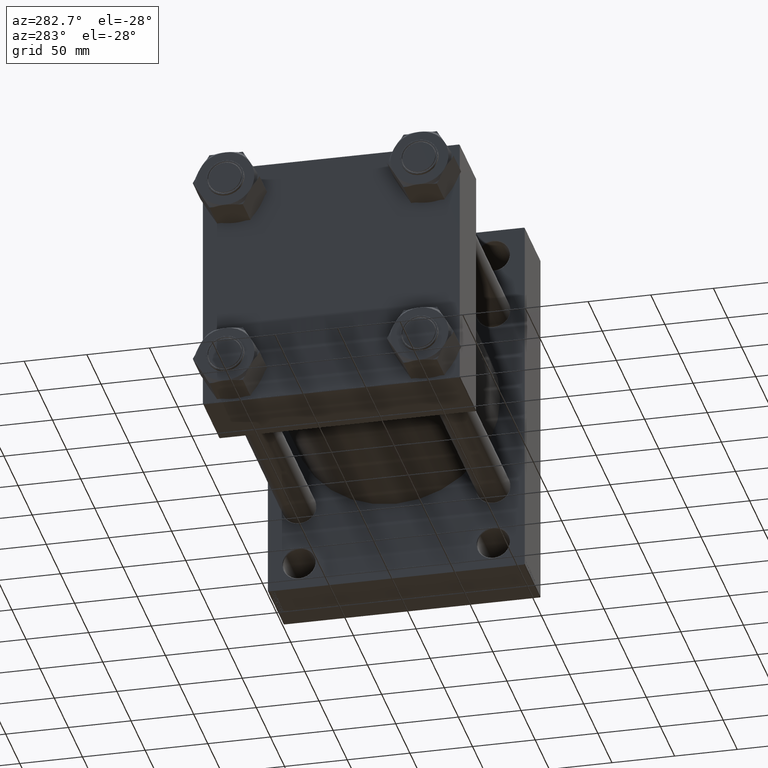
[diagram: clean part render]
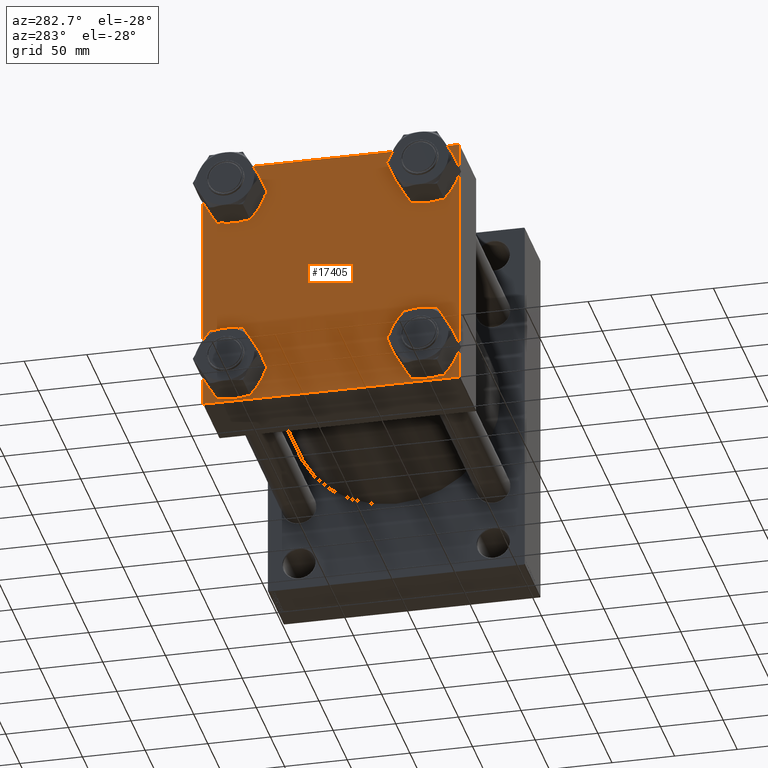
[diagram: same view with one face highlighted and labeled with its STEP entity id]
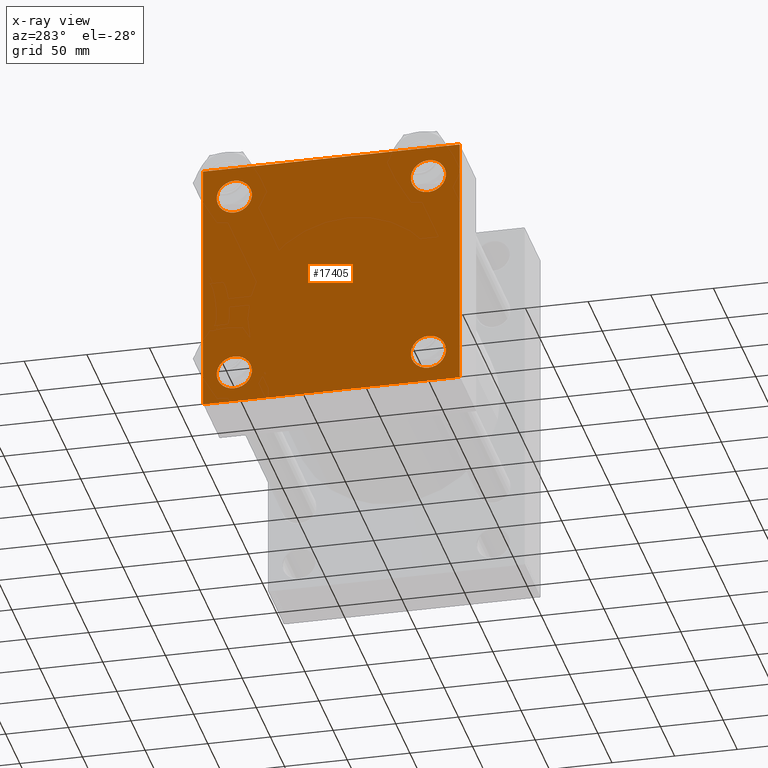
[diagram: x-ray of the same camera — body ghosted, the highlighted face saturated]
A machine part, auxiliary view. The second image highlights one B-rep face of the part: STEP entity #17405.
The next image is the same camera in x-ray: the body ghosted, the highlighted face saturated — about 0% of this face is hidden behind the body in this view.
In plain terms, the highlighted planar face has unit normal (-1, 0, 0).
Its self-contained STEP definition (entity closure, byte-faithful):
#263 = DIRECTION ( 'NONE',  ( 0.000000000000000000, 0.000000000000000000, 1.000000000000000000 ) ) ;
#495 = DIRECTION ( 'NONE',  ( 1.000000000000000000, -0.000000000000000000, -0.000000000000000000 ) ) ;
#644 = LINE ( 'NONE', #44977, #19964 ) ;
#779 = DIRECTION ( 'NONE',  ( 0.000000000000000000, 0.7071067811865474617, -0.7071067811865474617 ) ) ;
#948 = FACE_BOUND ( 'NONE', #6218, .T. ) ;
#1090 = CARTESIAN_POINT ( 'NONE',  ( 0.000000000000000000, 77.44999999999998863, 91.45000000000014495 ) ) ;
#1969 = EDGE_CURVE ( 'NONE', #36597, #6705, #27398, .T. ) ;
#2100 = ORIENTED_EDGE ( 'NONE', *, *, #9633, .F. ) ;
#2260 = CARTESIAN_POINT ( 'NONE',  ( 0.000000000000000000, 102.5000000000000284, 102.5000000000000284 ) ) ;
#2739 = CARTESIAN_POINT ( 'NONE',  ( 0.000000000000000000, -102.4999999999999716, 102.5000000000000000 ) ) ;
#3314 = DIRECTION ( 'NONE',  ( 0.000000000000000000, -1.000000000000000000, -1.353930517835556727E-16 ) ) ;
#3366 = LINE ( 'NONE', #7024, #43877 ) ;
#3601 = CARTESIAN_POINT ( 'NONE',  ( 0.000000000000000000, 77.44999999999998863, 77.45000000000001705 ) ) ;
#3658 = ORIENTED_EDGE ( 'NONE', *, *, #35956, .T. ) ;
#3759 = VERTEX_POINT ( 'NONE', #20785 ) ;
#4411 = EDGE_CURVE ( 'NONE', #43831, #18232, #3366, .T. ) ;
#4508 = CIRCLE ( 'NONE', #37160, 14.00000000000012434 ) ;
#4871 = CARTESIAN_POINT ( 'NONE',  ( 0.000000000000000000, -102.2499999999999716, -102.2499999999999716 ) ) ;
#4901 = CARTESIAN_POINT ( 'NONE',  ( 0.000000000000000000, 102.2500000000000142, 102.2500000000000142 ) ) ;
#5159 = CARTESIAN_POINT ( 'NONE',  ( 0.000000000000000000, -102.4999999999999716, 102.0000000000000000 ) ) ;
#5242 = CIRCLE ( 'NONE', #28554, 14.00000000000012434 ) ;
#5819 = ORIENTED_EDGE ( 'NONE', *, *, #30098, .F. ) ;
#6218 = EDGE_LOOP ( 'NONE', ( #24434, #37667 ) ) ;
#6705 = VERTEX_POINT ( 'NONE', #16408 ) ;
#6754 = DIRECTION ( 'NONE',  ( 1.000000000000000000, -0.000000000000000000, -0.000000000000000000 ) ) ;
#6861 = CIRCLE ( 'NONE', #34048, 14.00000000000012434 ) ;
#7024 = CARTESIAN_POINT ( 'NONE',  ( 0.000000000000000000, -102.2499999999999716, 102.2499999999999716 ) ) ;
#7027 = CARTESIAN_POINT ( 'NONE',  ( 0.000000000000000000, -77.44999999999996021, 91.45000000000015916 ) ) ;
#7319 = DIRECTION ( 'NONE',  ( 0.000000000000000000, 0.000000000000000000, 1.000000000000000000 ) ) ;
#7560 = DIRECTION ( 'NONE',  ( 1.000000000000000000, -0.000000000000000000, -0.000000000000000000 ) ) ;
#7974 = EDGE_CURVE ( 'NONE', #39006, #21910, #15927, .T. ) ;
#8194 = VERTEX_POINT ( 'NONE', #20069 ) ;
#8264 = DIRECTION ( 'NONE',  ( -1.000000000000000000, 0.000000000000000000, 0.000000000000000000 ) ) ;
#8375 = VERTEX_POINT ( 'NONE', #16907 ) ;
#8500 = FACE_OUTER_BOUND ( 'NONE', #29611, .T. ) ;
#8908 = EDGE_CURVE ( 'NONE', #8194, #39456, #27011, .T. ) ;
#9199 = DIRECTION ( 'NONE',  ( 1.000000000000000000, -0.000000000000000000, -0.000000000000000000 ) ) ;
#9227 = CARTESIAN_POINT ( 'NONE',  ( 0.000000000000000000, 0.000000000000000000, 0.000000000000000000 ) ) ;
#9446 = EDGE_CURVE ( 'NONE', #6705, #36597, #37784, .T. ) ;
#9633 = EDGE_CURVE ( 'NONE', #43831, #39456, #10058, .T. ) ;
#9730 = DIRECTION ( 'NONE',  ( 0.000000000000000000, 0.000000000000000000, 1.000000000000000000 ) ) ;
#10058 = LINE ( 'NONE', #2739, #12928 ) ;
#10406 = CARTESIAN_POINT ( 'NONE',  ( 0.000000000000000000, 77.44999999999998863, -77.45000000000001705 ) ) ;
#10632 = CARTESIAN_POINT ( 'NONE',  ( 0.000000000000000000, -77.44999999999996021, 77.45000000000003126 ) ) ;
#10890 = DIRECTION ( 'NONE',  ( 0.000000000000000000, 0.000000000000000000, 1.000000000000000000 ) ) ;
#10977 = CARTESIAN_POINT ( 'NONE',  ( 0.000000000000000000, -101.9999999999999147, 102.5000000000000000 ) ) ;
#11343 = LINE ( 'NONE', #40082, #39563 ) ;
#12928 = VECTOR ( 'NONE', #47305, 1000.000000000000000 ) ;
#13126 = DIRECTION ( 'NONE',  ( 0.000000000000000000, 0.000000000000000000, 1.000000000000000000 ) ) ;
#13547 = DIRECTION ( 'NONE',  ( 0.000000000000000000, 0.000000000000000000, 1.000000000000000000 ) ) ;
#14247 = CARTESIAN_POINT ( 'NONE',  ( 0.000000000000000000, 77.44999999999998863, 63.44999999999989626 ) ) ;
#15035 = DIRECTION ( 'NONE',  ( -0.000000000000000000, 0.7071067811865474617, 0.7071067811865474617 ) ) ;
#15421 = CARTESIAN_POINT ( 'NONE',  ( 0.000000000000000000, -77.44999999999996021, -77.45000000000003126 ) ) ;
#15490 = EDGE_CURVE ( 'NONE', #42808, #18903, #644, .T. ) ;
#15927 = CIRCLE ( 'NONE', #23716, 14.00000000000012434 ) ;
#16408 = CARTESIAN_POINT ( 'NONE',  ( 0.000000000000000000, 77.44999999999998863, -63.44999999999989626 ) ) ;
#16531 = DIRECTION ( 'NONE',  ( 1.000000000000000000, -0.000000000000000000, -0.000000000000000000 ) ) ;
#16907 = CARTESIAN_POINT ( 'NONE',  ( 0.000000000000000000, 102.5000000000000284, 102.0000000000000142 ) ) ;
#17405 = ADVANCED_FACE ( 'NONE', ( #27216, #24062, #948, #46488, #8500 ), #31360, .T. ) ;
#17632 = EDGE_CURVE ( 'NONE', #33178, #37899, #4508, .T. ) ;
#18232 = VERTEX_POINT ( 'NONE', #10977 ) ;
#18523 = EDGE_CURVE ( 'NONE', #18903, #8194, #11343, .T. ) ;
#18903 = VERTEX_POINT ( 'NONE', #45119 ) ;
#19260 = AXIS2_PLACEMENT_3D ( 'NONE', #9227, #8264, #13126 ) ;
#19342 = DIRECTION ( 'NONE',  ( 0.000000000000000000, 0.000000000000000000, -1.000000000000000000 ) ) ;
#19802 = DIRECTION ( 'NONE',  ( 0.000000000000000000, 0.000000000000000000, 1.000000000000000000 ) ) ;
#19964 = VECTOR ( 'NONE', #40833, 1000.000000000000114 ) ;
#20069 = CARTESIAN_POINT ( 'NONE',  ( 0.000000000000000000, -101.9999999999999432, -102.5000000000000000 ) ) ;
#20785 = CARTESIAN_POINT ( 'NONE',  ( 0.000000000000000000, -77.44999999999996021, -91.45000000000015916 ) ) ;
#20886 = AXIS2_PLACEMENT_3D ( 'NONE', #47747, #495, #263 ) ;
#21055 = CARTESIAN_POINT ( 'NONE',  ( 0.000000000000000000, -77.44999999999996021, 63.44999999999991047 ) ) ;
#21353 = ORIENTED_EDGE ( 'NONE', *, *, #46589, .T. ) ;
#21910 = VERTEX_POINT ( 'NONE', #21055 ) ;
#22570 = ORIENTED_EDGE ( 'NONE', *, *, #34371, .T. ) ;
#23216 = VERTEX_POINT ( 'NONE', #36826 ) ;
#23474 = CARTESIAN_POINT ( 'NONE',  ( 0.000000000000000000, 102.5000000000000284, 102.5000000000000284 ) ) ;
#23716 = AXIS2_PLACEMENT_3D ( 'NONE', #10632, #16531, #9730 ) ;
#23789 = VECTOR ( 'NONE', #24644, 1000.000000000000000 ) ;
#23947 = CARTESIAN_POINT ( 'NONE',  ( 0.000000000000000000, 102.5000000000000284, -101.9999999999999147 ) ) ;
#24062 = FACE_BOUND ( 'NONE', #42221, .T. ) ;
#24434 = ORIENTED_EDGE ( 'NONE', *, *, #9446, .T. ) ;
#24644 = DIRECTION ( 'NONE',  ( 0.000000000000000000, -1.000000000000000000, -1.353930517835556973E-16 ) ) ;
#25659 = DIRECTION ( 'NONE',  ( 1.000000000000000000, -0.000000000000000000, -0.000000000000000000 ) ) ;
#25961 = ORIENTED_EDGE ( 'NONE', *, *, #39373, .T. ) ;
#26128 = ORIENTED_EDGE ( 'NONE', *, *, #38743, .T. ) ;
#26554 = AXIS2_PLACEMENT_3D ( 'NONE', #36785, #7560, #7319 ) ;
#27011 = LINE ( 'NONE', #4871, #38546 ) ;
#27077 = ORIENTED_EDGE ( 'NONE', *, *, #18523, .T. ) ;
#27216 = FACE_BOUND ( 'NONE', #29206, .T. ) ;
#27398 = CIRCLE ( 'NONE', #38305, 14.00000000000012434 ) ;
#28533 = LINE ( 'NONE', #2260, #23789 ) ;
#28554 = AXIS2_PLACEMENT_3D ( 'NONE', #45965, #9199, #39629 ) ;
#29198 = ORIENTED_EDGE ( 'NONE', *, *, #8908, .T. ) ;
#29206 = EDGE_LOOP ( 'NONE', ( #42985, #3658 ) ) ;
#29209 = AXIS2_PLACEMENT_3D ( 'NONE', #10406, #6754, #10890 ) ;
#29611 = EDGE_LOOP ( 'NONE', ( #25961, #34961, #27077, #29198, #2100, #31235, #5819, #36126 ) ) ;
#30098 = EDGE_CURVE ( 'NONE', #44244, #18232, #28533, .T. ) ;
#30908 = DIRECTION ( 'NONE',  ( 0.000000000000000000, -0.7071067811865474617, 0.7071067811865474617 ) ) ;
#31235 = ORIENTED_EDGE ( 'NONE', *, *, #4411, .T. ) ;
#31360 = PLANE ( 'NONE',  #19260 ) ;
#31901 = EDGE_LOOP ( 'NONE', ( #45997, #21353 ) ) ;
#32039 = CARTESIAN_POINT ( 'NONE',  ( 0.000000000000000000, 77.44999999999998863, -77.45000000000001705 ) ) ;
#33178 = VERTEX_POINT ( 'NONE', #1090 ) ;
#33590 = CIRCLE ( 'NONE', #26554, 14.00000000000012434 ) ;
#33926 = DIRECTION ( 'NONE',  ( 0.000000000000000000, 0.000000000000000000, 1.000000000000000000 ) ) ;
#34048 = AXIS2_PLACEMENT_3D ( 'NONE', #15421, #25659, #33926 ) ;
#34371 = EDGE_CURVE ( 'NONE', #3759, #23216, #6861, .T. ) ;
#34961 = ORIENTED_EDGE ( 'NONE', *, *, #15490, .T. ) ;
#35414 = CARTESIAN_POINT ( 'NONE',  ( 0.000000000000000000, -102.5000000000000000, -101.9999999999998863 ) ) ;
#35956 = EDGE_CURVE ( 'NONE', #21910, #39006, #5242, .T. ) ;
#36126 = ORIENTED_EDGE ( 'NONE', *, *, #42133, .T. ) ;
#36597 = VERTEX_POINT ( 'NONE', #40648 ) ;
#36785 = CARTESIAN_POINT ( 'NONE',  ( 0.000000000000000000, 77.44999999999998863, 77.45000000000001705 ) ) ;
#36826 = CARTESIAN_POINT ( 'NONE',  ( 0.000000000000000000, -77.44999999999996021, -63.44999999999991047 ) ) ;
#37160 = AXIS2_PLACEMENT_3D ( 'NONE', #3601, #44751, #19802 ) ;
#37667 = ORIENTED_EDGE ( 'NONE', *, *, #1969, .T. ) ;
#37784 = CIRCLE ( 'NONE', #29209, 14.00000000000012434 ) ;
#37899 = VERTEX_POINT ( 'NONE', #14247 ) ;
#38254 = CARTESIAN_POINT ( 'NONE',  ( 0.000000000000000000, 102.0000000000000142, 102.5000000000000284 ) ) ;
#38305 = AXIS2_PLACEMENT_3D ( 'NONE', #32039, #43256, #13547 ) ;
#38546 = VECTOR ( 'NONE', #30908, 1000.000000000000114 ) ;
#38743 = EDGE_CURVE ( 'NONE', #23216, #3759, #38754, .T. ) ;
#38754 = CIRCLE ( 'NONE', #20886, 14.00000000000012434 ) ;
#39006 = VERTEX_POINT ( 'NONE', #7027 ) ;
#39373 = EDGE_CURVE ( 'NONE', #8375, #42808, #41989, .T. ) ;
#39456 = VERTEX_POINT ( 'NONE', #35414 ) ;
#39563 = VECTOR ( 'NONE', #3314, 1000.000000000000000 ) ;
#39629 = DIRECTION ( 'NONE',  ( 0.000000000000000000, 0.000000000000000000, 1.000000000000000000 ) ) ;
#40082 = CARTESIAN_POINT ( 'NONE',  ( 0.000000000000000000, 102.5000000000000284, -102.4999999999999716 ) ) ;
#40648 = CARTESIAN_POINT ( 'NONE',  ( 0.000000000000000000, 77.44999999999998863, -91.45000000000014495 ) ) ;
#40833 = DIRECTION ( 'NONE',  ( -0.000000000000000000, -0.7071067811865474617, -0.7071067811865474617 ) ) ;
#41223 = VECTOR ( 'NONE', #779, 1000.000000000000114 ) ;
#41989 = LINE ( 'NONE', #23474, #45021 ) ;
#42133 = EDGE_CURVE ( 'NONE', #44244, #8375, #45339, .T. ) ;
#42221 = EDGE_LOOP ( 'NONE', ( #26128, #22570 ) ) ;
#42808 = VERTEX_POINT ( 'NONE', #23947 ) ;
#42985 = ORIENTED_EDGE ( 'NONE', *, *, #7974, .T. ) ;
#43256 = DIRECTION ( 'NONE',  ( 1.000000000000000000, -0.000000000000000000, -0.000000000000000000 ) ) ;
#43831 = VERTEX_POINT ( 'NONE', #5159 ) ;
#43877 = VECTOR ( 'NONE', #15035, 1000.000000000000114 ) ;
#44244 = VERTEX_POINT ( 'NONE', #38254 ) ;
#44751 = DIRECTION ( 'NONE',  ( 1.000000000000000000, -0.000000000000000000, -0.000000000000000000 ) ) ;
#44977 = CARTESIAN_POINT ( 'NONE',  ( 0.000000000000000000, 102.2500000000000000, -102.2500000000000000 ) ) ;
#45021 = VECTOR ( 'NONE', #19342, 1000.000000000000000 ) ;
#45119 = CARTESIAN_POINT ( 'NONE',  ( 0.000000000000000000, 102.0000000000000142, -102.4999999999999716 ) ) ;
#45339 = LINE ( 'NONE', #4901, #41223 ) ;
#45965 = CARTESIAN_POINT ( 'NONE',  ( 0.000000000000000000, -77.44999999999996021, 77.45000000000003126 ) ) ;
#45997 = ORIENTED_EDGE ( 'NONE', *, *, #17632, .T. ) ;
#46488 = FACE_BOUND ( 'NONE', #31901, .T. ) ;
#46589 = EDGE_CURVE ( 'NONE', #37899, #33178, #33590, .T. ) ;
#47305 = DIRECTION ( 'NONE',  ( 0.000000000000000000, -1.353930517835556973E-16, -1.000000000000000000 ) ) ;
#47747 = CARTESIAN_POINT ( 'NONE',  ( 0.000000000000000000, -77.44999999999996021, -77.45000000000003126 ) ) ;